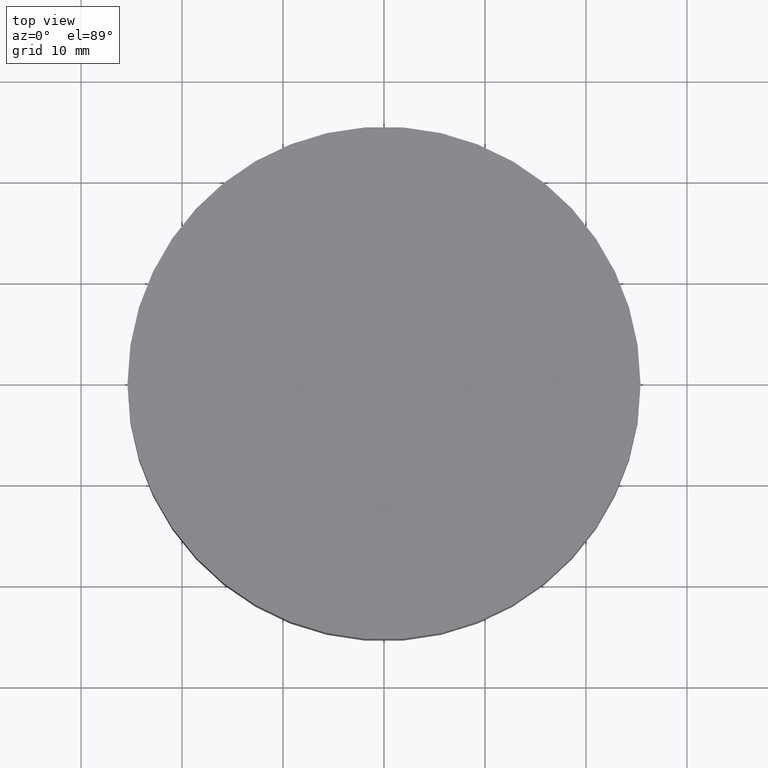
[diagram: clean part render]
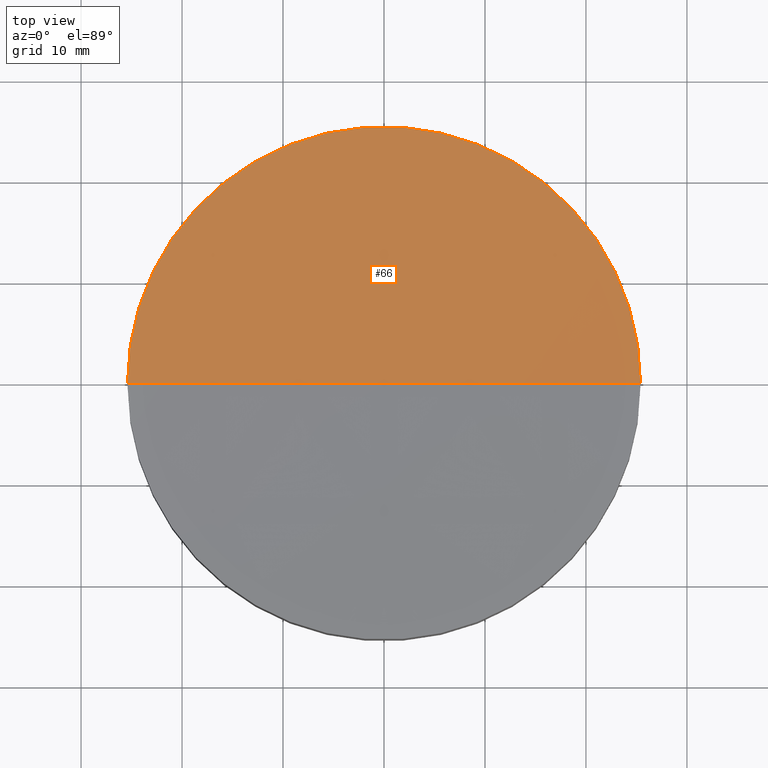
[diagram: same view with one face highlighted and labeled with its STEP entity id]
A machine part, top view. The second image highlights one B-rep face of the part: STEP entity #66.
In plain terms, the highlighted spherical surface has radius 750 mm.
Its self-contained STEP definition (entity closure, byte-faithful):
#2 = ORIENTED_EDGE ( 'NONE', *, *, #197, .F. ) ;
#12 = EDGE_CURVE ( 'NONE', #21, #31, #198, .T. ) ;
#16 = EDGE_LOOP ( 'NONE', ( #2, #180, #64 ) ) ;
#21 = VERTEX_POINT ( 'NONE', #107 ) ;
#31 = VERTEX_POINT ( 'NONE', #185 ) ;
#42 = CARTESIAN_POINT ( 'NONE',  ( 9.367506770274758310E-14, 0.000000000000000000, 759.5697699347272192 ) ) ;
#46 = FACE_OUTER_BOUND ( 'NONE', #16, .T. ) ;
#49 = DIRECTION ( 'NONE',  ( 1.224646799147353207E-16, -1.000000000000000000, 0.000000000000000000 ) ) ;
#53 = CARTESIAN_POINT ( 'NONE',  ( 25.40000000000512514, 3.110602869834904798E-15, 10.00000000000000888 ) ) ;
#59 = SPHERICAL_SURFACE ( 'NONE', #190, 750.0000000000001137 ) ;
#63 = AXIS2_PLACEMENT_3D ( 'NONE', #42, #148, #143 ) ;
#64 = ORIENTED_EDGE ( 'NONE', *, *, #170, .F. ) ;
#66 = ADVANCED_FACE ( 'NONE', ( #46 ), #59, .F. ) ;
#67 = AXIS2_PLACEMENT_3D ( 'NONE', #68, #125, #115 ) ;
#68 = CARTESIAN_POINT ( 'NONE',  ( 9.367506770274758310E-14, 0.000000000000000000, 10.00000000000000888 ) ) ;
#107 = CARTESIAN_POINT ( 'NONE',  ( -25.40000000000493330, 0.000000000000000000, 10.00000000000000888 ) ) ;
#115 = DIRECTION ( 'NONE',  ( 1.000000000000000000, 0.000000000000000000, 0.000000000000000000 ) ) ;
#121 = CARTESIAN_POINT ( 'NONE',  ( 9.367506770274758310E-14, 0.000000000000000000, 759.5697699347272192 ) ) ;
#125 = DIRECTION ( 'NONE',  ( -0.000000000000000000, -0.000000000000000000, -1.000000000000000000 ) ) ;
#131 = AXIS2_PLACEMENT_3D ( 'NONE', #137, #49, #135 ) ;
#135 = DIRECTION ( 'NONE',  ( 1.000000000000000000, 1.224646799147353207E-16, 0.000000000000000000 ) ) ;
#137 = CARTESIAN_POINT ( 'NONE',  ( 9.367506770274758310E-14, 0.000000000000000000, 759.5697699347272192 ) ) ;
#143 = DIRECTION ( 'NONE',  ( 0.000000000000000000, 0.000000000000000000, 1.000000000000000000 ) ) ;
#148 = DIRECTION ( 'NONE',  ( 0.000000000000000000, 1.000000000000000000, -0.000000000000000000 ) ) ;
#149 = CIRCLE ( 'NONE', #63, 750.0000000000002274 ) ;
#154 = VERTEX_POINT ( 'NONE', #53 ) ;
#169 = DIRECTION ( 'NONE',  ( 1.000000000000000000, 0.000000000000000000, 0.000000000000000000 ) ) ;
#170 = EDGE_CURVE ( 'NONE', #154, #31, #149, .T. ) ;
#176 = CIRCLE ( 'NONE', #67, 25.40000000000502922 ) ;
#180 = ORIENTED_EDGE ( 'NONE', *, *, #12, .T. ) ;
#185 = CARTESIAN_POINT ( 'NONE',  ( 1.395993226707733394E-13, 0.000000000000000000, 9.569769934727133887 ) ) ;
#190 = AXIS2_PLACEMENT_3D ( 'NONE', #121, #200, #169 ) ;
#197 = EDGE_CURVE ( 'NONE', #21, #154, #176, .T. ) ;
#198 = CIRCLE ( 'NONE', #131, 750.0000000000001137 ) ;
#200 = DIRECTION ( 'NONE',  ( 0.000000000000000000, -1.000000000000000000, -0.000000000000000000 ) ) ;